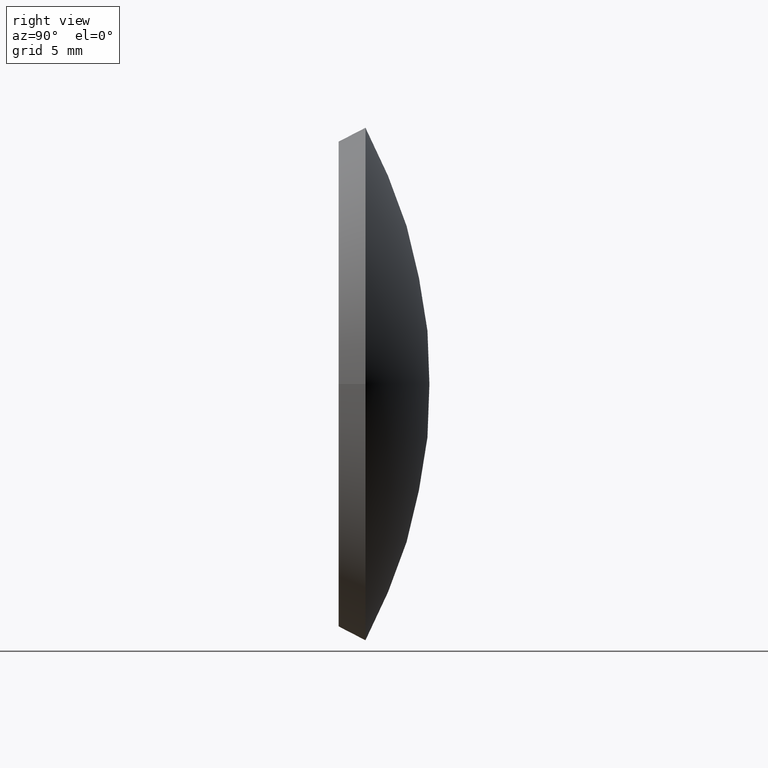
[diagram: clean part render]
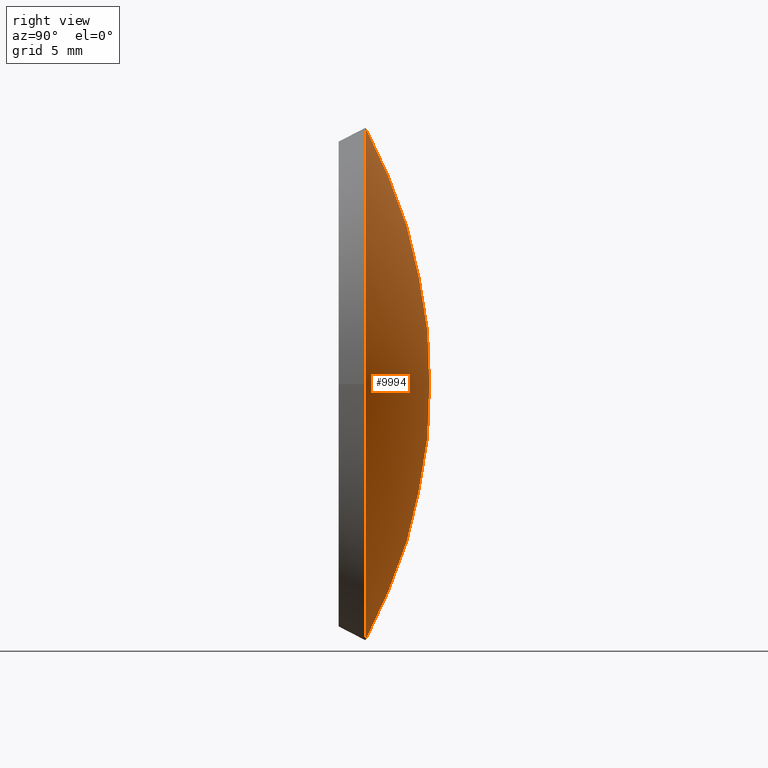
[diagram: same view with one face highlighted and labeled with its STEP entity id]
A machine part, right view. The second image highlights one B-rep face of the part: STEP entity #9994.
In plain terms, the highlighted spherical surface has radius 35.6164 mm.
Its self-contained STEP definition (entity closure, byte-faithful):
#346 = EDGE_CURVE ( 'NONE', #1239, #1239, #6716, .T. ) ;
#685 = SPHERICAL_SURFACE ( 'NONE', #935, 35.61638137002139359 ) ;
#935 = AXIS2_PLACEMENT_3D ( 'NONE', #1219, #8231, #4226 ) ;
#1219 = CARTESIAN_POINT ( 'NONE',  ( 8.824765079577865658E-26, -29.61638137002139004, 0.000000000000000000 ) ) ;
#1239 = VERTEX_POINT ( 'NONE', #4395 ) ;
#2276 = EDGE_LOOP ( 'NONE', ( #4917 ) ) ;
#2737 = FACE_OUTER_BOUND ( 'NONE', #2276, .T. ) ;
#3084 = DIRECTION ( 'NONE',  ( 1.029204846092834212E-15, -1.000000000000000000, -0.000000000000000000 ) ) ;
#4226 = DIRECTION ( 'NONE',  ( 1.000000000000000000, 1.071527061522668999E-15, 0.000000000000000000 ) ) ;
#4395 = CARTESIAN_POINT ( 'NONE',  ( 16.84999999999999787, 1.762020786474822742, 0.000000000000000000 ) ) ;
#4917 = ORIENTED_EDGE ( 'NONE', *, *, #346, .F. ) ;
#6716 = CIRCLE ( 'NONE', #11465, 16.84999999999999432 ) ;
#7403 = DIRECTION ( 'NONE',  ( 1.000000000000000000, 1.029509481291874052E-15, 0.000000000000000000 ) ) ;
#8231 = DIRECTION ( 'NONE',  ( 0.000000000000000000, -0.000000000000000000, 1.000000000000000000 ) ) ;
#9994 = ADVANCED_FACE ( 'NONE', ( #2737 ), #685, .T. ) ;
#11155 = CARTESIAN_POINT ( 'NONE',  ( 4.361748744289077522E-15, 1.762020786474805423, 0.000000000000000000 ) ) ;
#11465 = AXIS2_PLACEMENT_3D ( 'NONE', #11155, #3084, #7403 ) ;